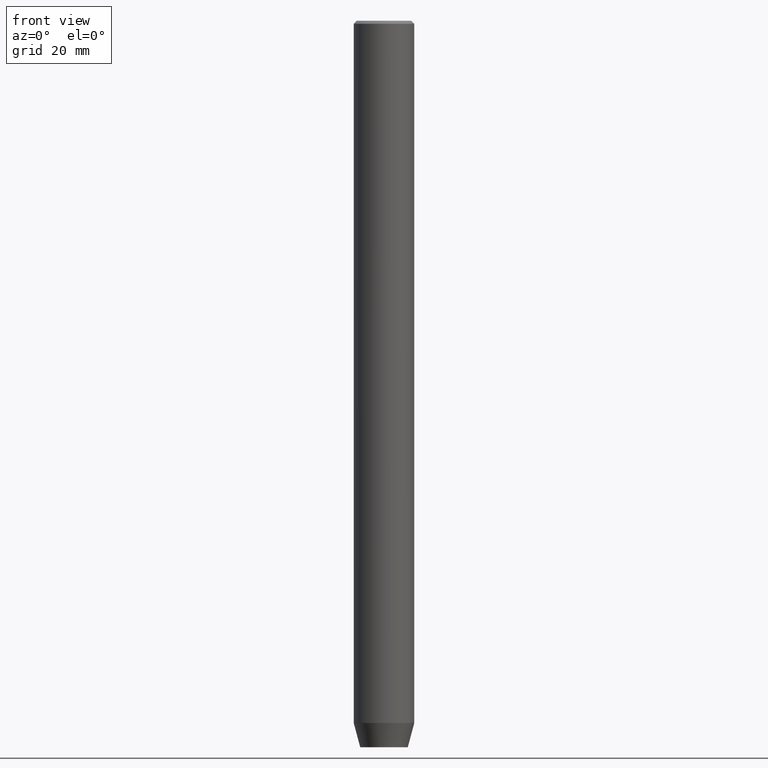
[diagram: clean part render]
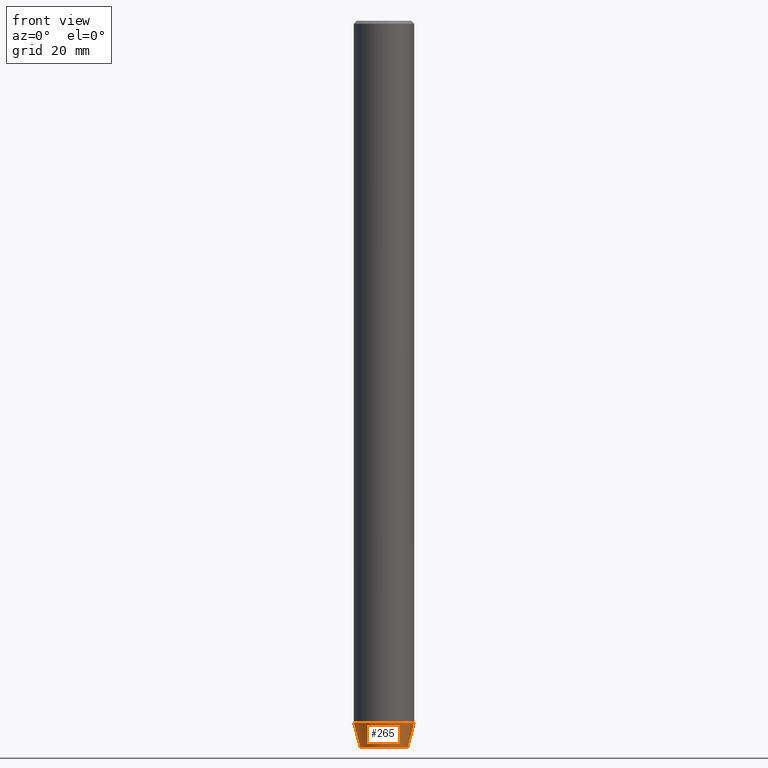
[diagram: same view with one face highlighted and labeled with its STEP entity id]
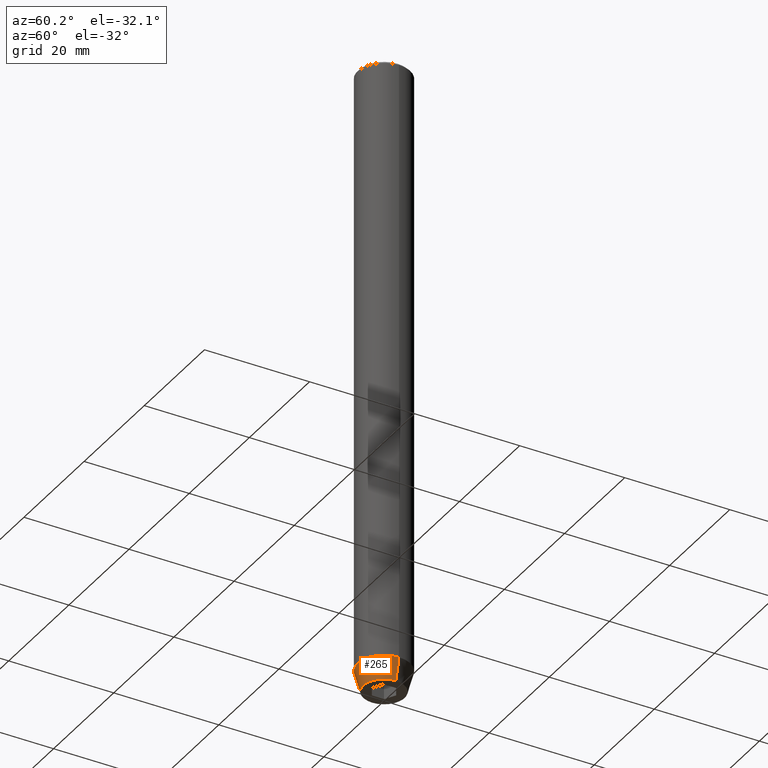
[diagram: same view with one face highlighted and labeled with its STEP entity id]
A machine part, front view. The second image highlights one B-rep face of the part: STEP entity #265.
A second angle (auxiliary view) of the same face is appended — the face is thin or edge-on in the first view.
In plain terms, the highlighted conical surface has half-angle 15 deg.
Its self-contained STEP definition (entity closure, byte-faithful):
#19 = LINE ( 'NONE', #196, #288 ) ;
#23 = VERTEX_POINT ( 'NONE', #554 ) ;
#35 = VERTEX_POINT ( 'NONE', #494 ) ;
#44 = AXIS2_PLACEMENT_3D ( 'NONE', #525, #162, #337 ) ;
#55 = DIRECTION ( 'NONE',  ( -0.000000000000000000, -0.000000000000000000, 1.000000000000000000 ) ) ;
#62 = EDGE_CURVE ( 'NONE', #35, #98, #249, .T. ) ;
#98 = VERTEX_POINT ( 'NONE', #421 ) ;
#100 = EDGE_CURVE ( 'NONE', #98, #345, #19, .T. ) ;
#126 = AXIS2_PLACEMENT_3D ( 'NONE', #355, #135, #540 ) ;
#135 = DIRECTION ( 'NONE',  ( -0.000000000000000000, -0.000000000000000000, 1.000000000000000000 ) ) ;
#150 = DIRECTION ( 'NONE',  ( 0.2588190451025210725, 0.000000000000000000, 0.9659258262890680902 ) ) ;
#162 = DIRECTION ( 'NONE',  ( -0.000000000000000000, -0.000000000000000000, 1.000000000000000000 ) ) ;
#180 = FACE_OUTER_BOUND ( 'NONE', #397, .T. ) ;
#196 = CARTESIAN_POINT ( 'NONE',  ( 5.000000000000000000, 0.000000000000000000, -115.9999999999999858 ) ) ;
#249 = CIRCLE ( 'NONE', #555, 3.928203230275506996 ) ;
#259 = CONICAL_SURFACE ( 'NONE', #126, 5.000000000000000000, 0.2617993877991497964 ) ;
#265 = ADVANCED_FACE ( 'NONE', ( #180 ), #259, .T. ) ;
#288 = VECTOR ( 'NONE', #150, 1000.000000000000114 ) ;
#337 = DIRECTION ( 'NONE',  ( 1.000000000000000000, 0.000000000000000000, 0.000000000000000000 ) ) ;
#339 = CIRCLE ( 'NONE', #44, 5.000000000000000000 ) ;
#345 = VERTEX_POINT ( 'NONE', #529 ) ;
#355 = CARTESIAN_POINT ( 'NONE',  ( 0.000000000000000000, 0.000000000000000000, -115.9999999999999858 ) ) ;
#356 = CARTESIAN_POINT ( 'NONE',  ( 0.000000000000000000, 0.000000000000000000, -120.0000000000000000 ) ) ;
#364 = CARTESIAN_POINT ( 'NONE',  ( -5.000000000000000000, 6.123233995736766282E-16, -115.9999999999999858 ) ) ;
#377 = DIRECTION ( 'NONE',  ( 1.000000000000000000, 0.000000000000000000, 0.000000000000000000 ) ) ;
#397 = EDGE_LOOP ( 'NONE', ( #485, #418, #537, #462 ) ) ;
#418 = ORIENTED_EDGE ( 'NONE', *, *, #62, .T. ) ;
#421 = CARTESIAN_POINT ( 'NONE',  ( 3.928203230275506996, 0.000000000000000000, -120.0000000000000000 ) ) ;
#462 = ORIENTED_EDGE ( 'NONE', *, *, #465, .F. ) ;
#465 = EDGE_CURVE ( 'NONE', #23, #345, #339, .T. ) ;
#485 = ORIENTED_EDGE ( 'NONE', *, *, #516, .F. ) ;
#494 = CARTESIAN_POINT ( 'NONE',  ( -3.928203230275506996, 5.466947754046979141E-16, -120.0000000000000000 ) ) ;
#516 = EDGE_CURVE ( 'NONE', #35, #23, #552, .T. ) ;
#525 = CARTESIAN_POINT ( 'NONE',  ( 0.000000000000000000, 0.000000000000000000, -115.9999999999999858 ) ) ;
#529 = CARTESIAN_POINT ( 'NONE',  ( 5.000000000000000000, 0.000000000000000000, -115.9999999999999858 ) ) ;
#537 = ORIENTED_EDGE ( 'NONE', *, *, #100, .T. ) ;
#540 = DIRECTION ( 'NONE',  ( 1.000000000000000000, 0.000000000000000000, 0.000000000000000000 ) ) ;
#544 = VECTOR ( 'NONE', #561, 1000.000000000000114 ) ;
#552 = LINE ( 'NONE', #364, #544 ) ;
#554 = CARTESIAN_POINT ( 'NONE',  ( -5.000000000000000000, 6.123233995736766282E-16, -115.9999999999999858 ) ) ;
#555 = AXIS2_PLACEMENT_3D ( 'NONE', #356, #55, #377 ) ;
#561 = DIRECTION ( 'NONE',  ( -0.2588190451025210725, 3.169619151431769255E-17, 0.9659258262890680902 ) ) ;